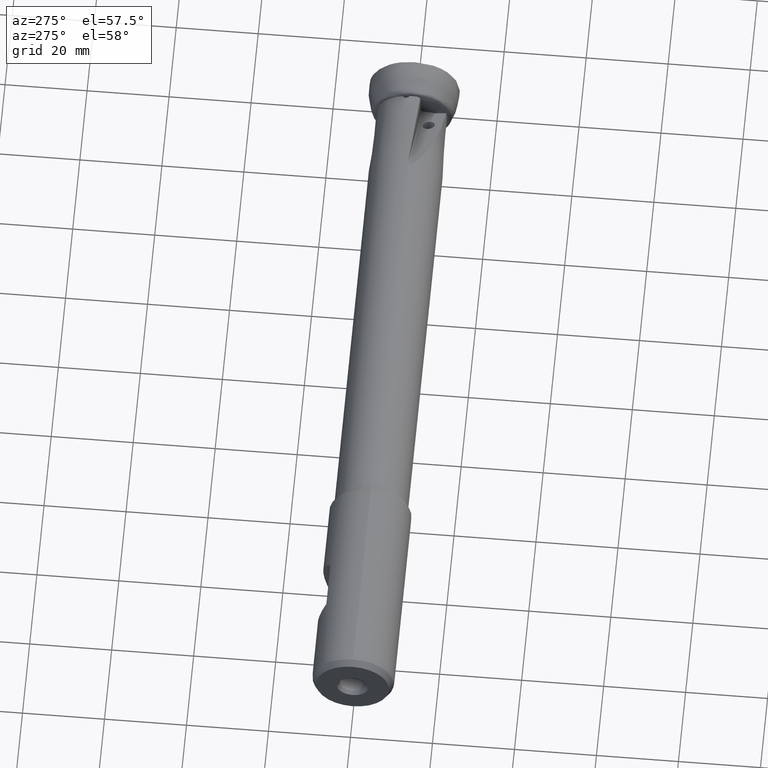
[diagram: clean part render]
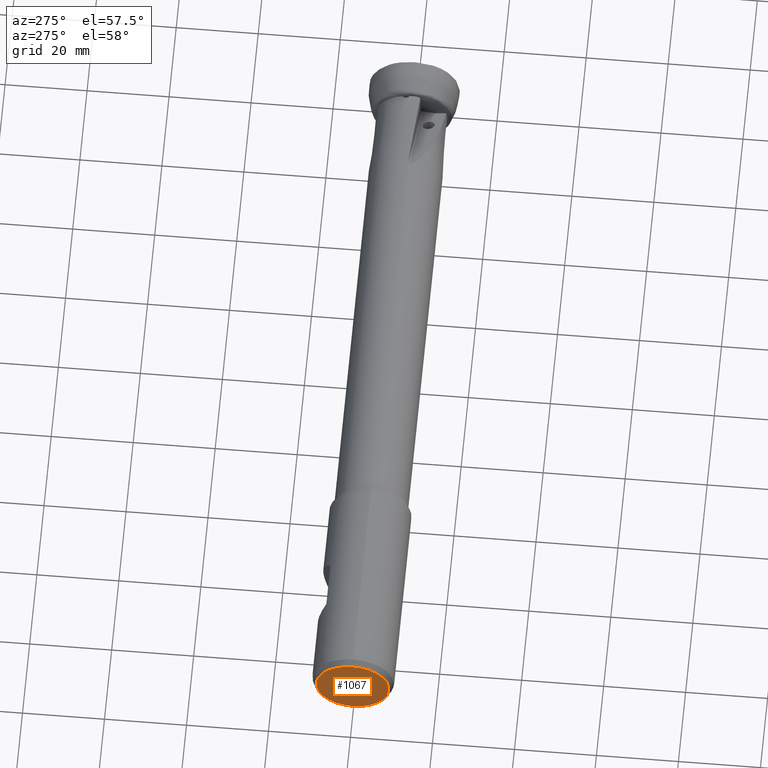
[diagram: same view with one face highlighted and labeled with its STEP entity id]
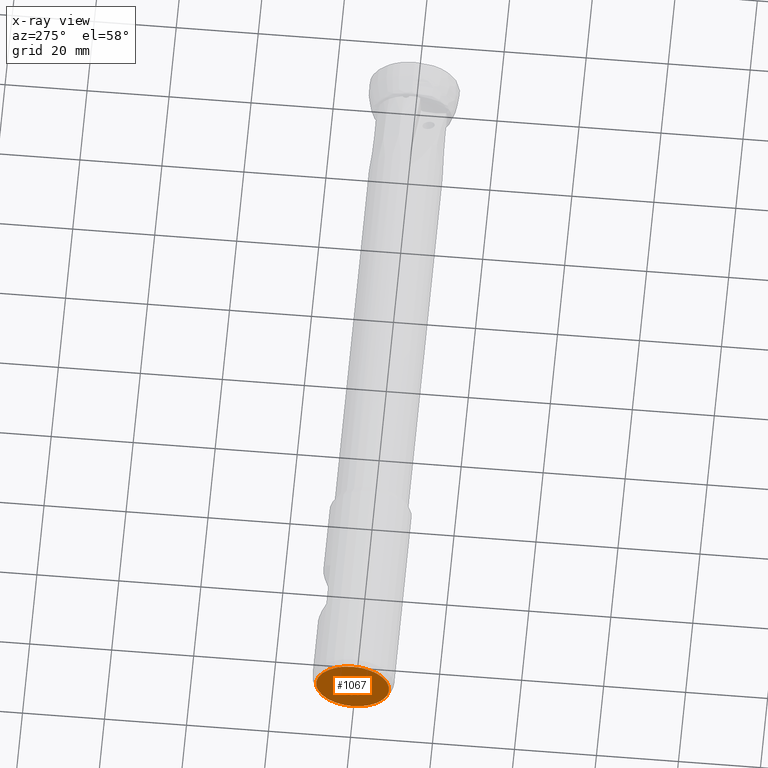
[diagram: x-ray of the same camera — body ghosted, the highlighted face saturated]
A machine part, auxiliary view. The second image highlights one B-rep face of the part: STEP entity #1067.
The next image is the same camera in x-ray: the body ghosted, the highlighted face saturated — about 0% of this face is hidden behind the body in this view.
In plain terms, the highlighted planar face has unit normal (-1, 0, 0).
Its self-contained STEP definition (entity closure, byte-faithful):
#60 = AXIS2_PLACEMENT_3D ( 'NONE', #116, #1607, #332 ) ;
#116 = CARTESIAN_POINT ( 'NONE',  ( -174.0500000000000100, 0.0000000000000000000, 0.0000000000000000000 ) ) ;
#332 = DIRECTION ( 'NONE',  ( 0.0000000000000000000, 0.0000000000000000000, -1.000000000000000000 ) ) ;
#350 = CARTESIAN_POINT ( 'NONE',  ( -174.0500000000000100, 0.0000000000000000000, 0.0000000000000000000 ) ) ;
#450 = AXIS2_PLACEMENT_3D ( 'NONE', #647, #1087, #2166 ) ;
#459 = CARTESIAN_POINT ( 'NONE',  ( -174.0500000000000100, 0.0000000000000000000, -8.899999999999979000 ) ) ;
#531 = AXIS2_PLACEMENT_3D ( 'NONE', #350, #1835, #561 ) ;
#561 = DIRECTION ( 'NONE',  ( 0.0000000000000000000, 0.0000000000000000000, -1.000000000000000000 ) ) ;
#647 = CARTESIAN_POINT ( 'NONE',  ( -174.0500000000000100, 8.899999999999979000, 0.0000000000000000000 ) ) ;
#673 = PLANE ( 'NONE',  #450 ) ;
#1021 = ORIENTED_EDGE ( 'NONE', *, *, #1766, .F. ) ;
#1067 = ADVANCED_FACE ( 'NONE', ( #2212, #1095 ), #673, .T. ) ;
#1087 = DIRECTION ( 'NONE',  ( -1.000000000000000000, 0.0000000000000000000, 0.0000000000000000000 ) ) ;
#1095 = FACE_OUTER_BOUND ( 'NONE', #2266, .T. ) ;
#1201 = EDGE_LOOP ( 'NONE', ( #1277 ) ) ;
#1216 = CIRCLE ( 'NONE', #60, 8.899999999999979000 ) ;
#1277 = ORIENTED_EDGE ( 'NONE', *, *, #1450, .T. ) ;
#1450 = EDGE_CURVE ( 'NONE', #2535, #2535, #1854, .T. ) ;
#1607 = DIRECTION ( 'NONE',  ( 1.000000000000000000, -0.0000000000000000000, -0.0000000000000000000 ) ) ;
#1729 = CARTESIAN_POINT ( 'NONE',  ( -174.0500000000000100, 0.0000000000000000000, -3.827350269189596900 ) ) ;
#1766 = EDGE_CURVE ( 'NONE', #1988, #1988, #1216, .T. ) ;
#1835 = DIRECTION ( 'NONE',  ( 1.000000000000000000, -0.0000000000000000000, -0.0000000000000000000 ) ) ;
#1854 = CIRCLE ( 'NONE', #531, 3.827350269189596900 ) ;
#1988 = VERTEX_POINT ( 'NONE', #459 ) ;
#2166 = DIRECTION ( 'NONE',  ( 0.0000000000000000000, 0.0000000000000000000, 1.000000000000000000 ) ) ;
#2212 = FACE_BOUND ( 'NONE', #1201, .T. ) ;
#2266 = EDGE_LOOP ( 'NONE', ( #1021 ) ) ;
#2535 = VERTEX_POINT ( 'NONE', #1729 ) ;